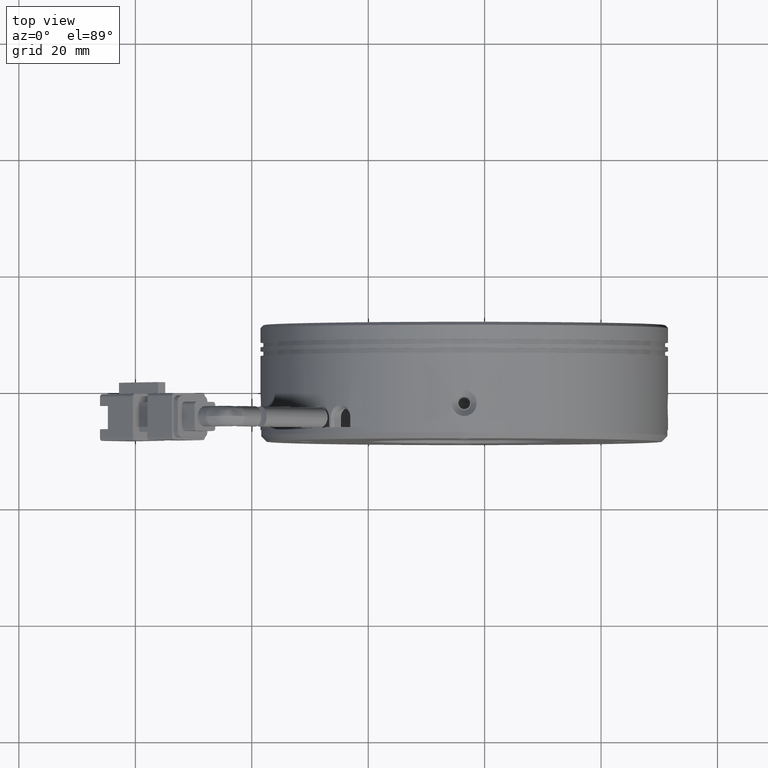
[diagram: clean part render]
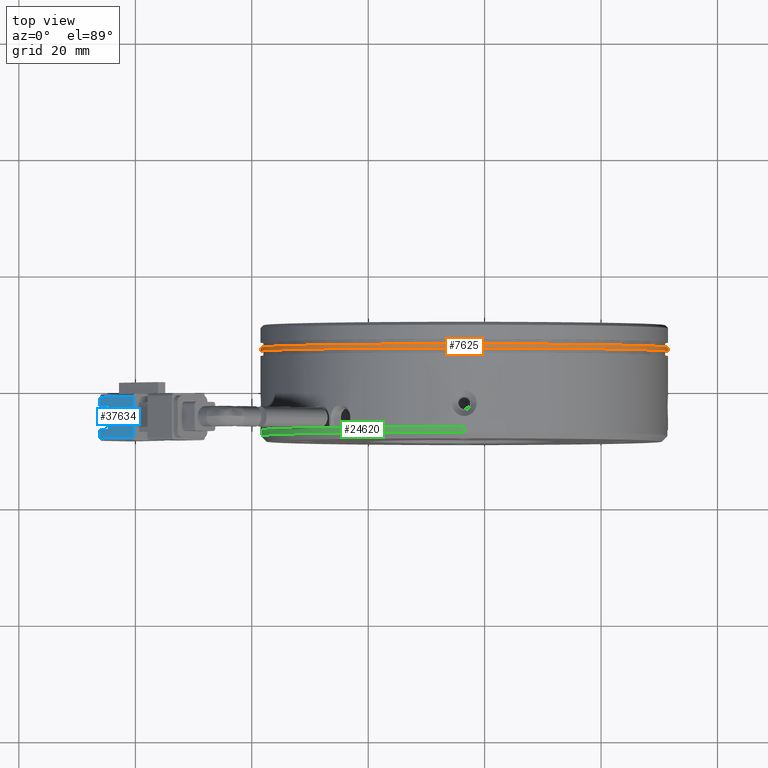
[diagram: same view with three faces highlighted in distinct colors, each labeled with its STEP entity id]
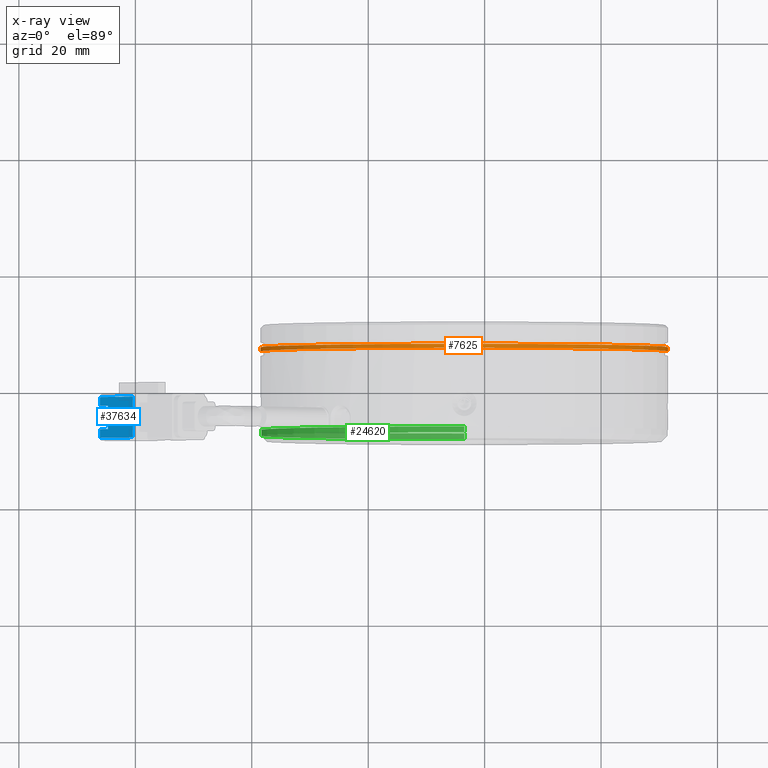
[diagram: x-ray of the same camera — body ghosted, the three highlighted faces saturated]
A machine part, top view with three faces highlighted in distinct colors.
The next image is the same camera in x-ray (body ghosted, the three faces saturated) — at least one of them is partly hidden behind the body in this view.
Their STEP definitions:

[orange] entity #7625 — the highlighted cylindrical surface (partial cylindrical patch) has radius 35 mm, axis along (0, 1, 0).
#1330 = CYLINDRICAL_SURFACE ( 'NONE', #34495, 35.00000000000000700 ) ;
#1667 = CIRCLE ( 'NONE', #23899, 35.00000000000000700 ) ;
#3836 = VECTOR ( 'NONE', #34998, 1000.000000000000000 ) ;
#5192 = CARTESIAN_POINT ( 'NONE',  ( -38.49922928709050800, 46.57623868994505800, -1.373900992973631200E-014 ) ) ;
#6320 = DIRECTION ( 'NONE',  ( -0.0000000000000000000, -1.000000000000000000, -0.0000000000000000000 ) ) ;
#6622 = CIRCLE ( 'NONE', #56351, 35.00000000000000700 ) ;
#7625 = ADVANCED_FACE ( 'NONE', ( #47284 ), #1330, .T. ) ;
#8764 = VERTEX_POINT ( 'NONE', #13535 ) ;
#11014 = EDGE_CURVE ( 'NONE', #83423, #79453, #6622, .T. ) ;
#13535 = CARTESIAN_POINT ( 'NONE',  ( 31.50077071290951400, 47.27623868994506000, 4.147485918937592700E-015 ) ) ;
#14640 = LINE ( 'NONE', #45651, #86926 ) ;
#17701 = VERTEX_POINT ( 'NONE', #58401 ) ;
#22928 = EDGE_CURVE ( 'NONE', #83423, #8764, #14640, .T. ) ;
#23899 = AXIS2_PLACEMENT_3D ( 'NONE', #48222, #6320, #55285 ) ;
#29982 = CARTESIAN_POINT ( 'NONE',  ( -3.499229287090496400, 46.57623868994505800, -6.938893903907228400E-015 ) ) ;
#31549 = CARTESIAN_POINT ( 'NONE',  ( -3.499229287090496400, 49.23205631493804200, -6.938893903907228400E-015 ) ) ;
#34495 = AXIS2_PLACEMENT_3D ( 'NONE', #31549, #80526, #66672 ) ;
#34735 = EDGE_CURVE ( 'NONE', #8764, #17701, #1667, .T. ) ;
#34998 = DIRECTION ( 'NONE',  ( 0.0000000000000000000, 1.000000000000000000, 0.0000000000000000000 ) ) ;
#37046 = DIRECTION ( 'NONE',  ( -1.000000000000000000, 0.0000000000000000000, -1.942890293094023500E-016 ) ) ;
#38526 = EDGE_CURVE ( 'NONE', #79453, #17701, #78258, .T. ) ;
#41910 = ORIENTED_EDGE ( 'NONE', *, *, #38526, .F. ) ;
#44604 = EDGE_LOOP ( 'NONE', ( #86071, #50985, #67297, #41910 ) ) ;
#45651 = CARTESIAN_POINT ( 'NONE',  ( 31.50077071290951400, 49.23205631493804200, 4.147485918937592700E-015 ) ) ;
#47284 = FACE_OUTER_BOUND ( 'NONE', #44604, .T. ) ;
#48222 = CARTESIAN_POINT ( 'NONE',  ( -3.499229287090496400, 47.27623868994506000, -6.938893903907228400E-015 ) ) ;
#50985 = ORIENTED_EDGE ( 'NONE', *, *, #22928, .T. ) ;
#55285 = DIRECTION ( 'NONE',  ( -1.000000000000000000, 0.0000000000000000000, -1.942890293094023500E-016 ) ) ;
#56351 = AXIS2_PLACEMENT_3D ( 'NONE', #29982, #78977, #37046 ) ;
#58401 = CARTESIAN_POINT ( 'NONE',  ( -38.49922928709050800, 47.27623868994506000, -1.373900992973631200E-014 ) ) ;
#59377 = DIRECTION ( 'NONE',  ( 0.0000000000000000000, 1.000000000000000000, 0.0000000000000000000 ) ) ;
#65684 = CARTESIAN_POINT ( 'NONE',  ( 31.50077071290951400, 46.57623868994505800, 4.147485918937592700E-015 ) ) ;
#66672 = DIRECTION ( 'NONE',  ( -1.000000000000000000, 0.0000000000000000000, -1.942890293094023500E-016 ) ) ;
#67297 = ORIENTED_EDGE ( 'NONE', *, *, #34735, .T. ) ;
#78258 = LINE ( 'NONE', #84268, #3836 ) ;
#78977 = DIRECTION ( 'NONE',  ( -0.0000000000000000000, -1.000000000000000000, -0.0000000000000000000 ) ) ;
#79453 = VERTEX_POINT ( 'NONE', #5192 ) ;
#80526 = DIRECTION ( 'NONE',  ( 0.0000000000000000000, 1.000000000000000000, 0.0000000000000000000 ) ) ;
#83423 = VERTEX_POINT ( 'NONE', #65684 ) ;
#84268 = CARTESIAN_POINT ( 'NONE',  ( -38.49922928709050800, 49.23205631493804200, -1.373900992973631200E-014 ) ) ;
#86071 = ORIENTED_EDGE ( 'NONE', *, *, #11014, .F. ) ;
#86926 = VECTOR ( 'NONE', #59377, 1000.000000000000000 ) ;

[blue] entity #37634 — the highlighted planar face has unit normal (0.7071, 0, -0.7071).
#3410 = DIRECTION ( 'NONE',  ( 0.7071067811865463500, 2.958228394578794300E-031, -0.7071067811865487900 ) ) ;
#4514 = VECTOR ( 'NONE', #31088, 1000.000000000000000 ) ;
#6208 = LINE ( 'NONE', #88607, #76253 ) ;
#6950 = LINE ( 'NONE', #13503, #44193 ) ;
#9542 = CARTESIAN_POINT ( 'NONE',  ( -66.07817942209986500, 38.27623868994507500, 25.10229073212249800 ) ) ;
#11606 = VECTOR ( 'NONE', #20176, 1000.000000000000000 ) ;
#11958 = CARTESIAN_POINT ( 'NONE',  ( -64.72150315198391000, 36.77623868994507500, 26.45896700223846000 ) ) ;
#12625 = EDGE_CURVE ( 'NONE', #88088, #26433, #77230, .T. ) ;
#13503 = CARTESIAN_POINT ( 'NONE',  ( -64.72150315198388200, 38.27623868994507500, 26.45896700223848100 ) ) ;
#15024 = VECTOR ( 'NONE', #75648, 1000.000000000000000 ) ;
#15908 = ORIENTED_EDGE ( 'NONE', *, *, #12625, .F. ) ;
#16003 = LINE ( 'NONE', #9542, #44449 ) ;
#16516 = AXIS2_PLACEMENT_3D ( 'NONE', #45297, #3410, #52362 ) ;
#17180 = PLANE ( 'NONE',  #16516 ) ;
#17249 = CARTESIAN_POINT ( 'NONE',  ( -66.07817942209986500, 31.27623868994507800, 25.10229073212249400 ) ) ;
#19858 = ORIENTED_EDGE ( 'NONE', *, *, #76141, .T. ) ;
#20176 = DIRECTION ( 'NONE',  ( 5.690897695192913200E-016, 1.000000000000000000, 5.690897695192897500E-016 ) ) ;
#21015 = CARTESIAN_POINT ( 'NONE',  ( -66.07817942209986500, 32.77623868994508200, 25.10229073212249400 ) ) ;
#26433 = VERTEX_POINT ( 'NONE', #80836 ) ;
#29022 = VERTEX_POINT ( 'NONE', #64054 ) ;
#30292 = EDGE_CURVE ( 'NONE', #29022, #62133, #6950, .T. ) ;
#30968 = CARTESIAN_POINT ( 'NONE',  ( -66.07817942209986500, 36.77623868994508200, 25.10229073212249800 ) ) ;
#31088 = DIRECTION ( 'NONE',  ( 0.7071067811865487900, -8.048144702619595500E-016, 0.7071067811865463500 ) ) ;
#31587 = DIRECTION ( 'NONE',  ( -0.7071067811865487900, 8.048144702619595500E-016, -0.7071067811865463500 ) ) ;
#32557 = LINE ( 'NONE', #21015, #69722 ) ;
#33658 = ORIENTED_EDGE ( 'NONE', *, *, #81367, .F. ) ;
#34821 = DIRECTION ( 'NONE',  ( 0.7071067811865487900, -8.048144702619595500E-016, 0.7071067811865463500 ) ) ;
#37634 = ADVANCED_FACE ( 'NONE', ( #41586 ), #17180, .F. ) ;
#38124 = CARTESIAN_POINT ( 'NONE',  ( -66.07817942209986500, 38.27623868994507500, 25.10229073212249800 ) ) ;
#39851 = LINE ( 'NONE', #30968, #74877 ) ;
#40489 = VERTEX_POINT ( 'NONE', #78166 ) ;
#41483 = CARTESIAN_POINT ( 'NONE',  ( -60.42132517260747400, 38.27623868994506800, 30.75914498161489500 ) ) ;
#41586 = FACE_OUTER_BOUND ( 'NONE', #65395, .T. ) ;
#42393 = ORIENTED_EDGE ( 'NONE', *, *, #87762, .F. ) ;
#44193 = VECTOR ( 'NONE', #55114, 1000.000000000000000 ) ;
#44449 = VECTOR ( 'NONE', #65781, 1000.000000000000000 ) ;
#45297 = CARTESIAN_POINT ( 'NONE',  ( -66.07817942209986500, 38.27623868994507500, 25.10229073212249800 ) ) ;
#47605 = EDGE_CURVE ( 'NONE', #26433, #54666, #60291, .T. ) ;
#50832 = ORIENTED_EDGE ( 'NONE', *, *, #30292, .F. ) ;
#52323 = CARTESIAN_POINT ( 'NONE',  ( -66.07817942209985100, 32.77623868994507500, 25.10229073212249400 ) ) ;
#52362 = DIRECTION ( 'NONE',  ( -0.7071067811865487900, 8.048144702619595500E-016, -0.7071067811865463500 ) ) ;
#53761 = DIRECTION ( 'NONE',  ( -1.145450188838179900E-015, -1.000000000000000000, -1.251682674090831700E-015 ) ) ;
#54666 = VERTEX_POINT ( 'NONE', #41483 ) ;
#54760 = ORIENTED_EDGE ( 'NONE', *, *, #75799, .F. ) ;
#55105 = CARTESIAN_POINT ( 'NONE',  ( -66.07817942209990700, 38.27623868994507500, 25.10229073212246200 ) ) ;
#55114 = DIRECTION ( 'NONE',  ( 5.690897695192913200E-016, 1.000000000000000000, 5.690897695192897500E-016 ) ) ;
#59332 = ORIENTED_EDGE ( 'NONE', *, *, #47605, .F. ) ;
#60291 = LINE ( 'NONE', #38124, #4514 ) ;
#62133 = VERTEX_POINT ( 'NONE', #11958 ) ;
#64054 = CARTESIAN_POINT ( 'NONE',  ( -64.72150315198392400, 32.77623868994507500, 26.45896700223844500 ) ) ;
#64730 = EDGE_CURVE ( 'NONE', #62133, #88088, #39851, .T. ) ;
#65395 = EDGE_LOOP ( 'NONE', ( #66772, #50832, #33658, #19858, #54760, #42393, #59332, #15908 ) ) ;
#65781 = DIRECTION ( 'NONE',  ( -1.145450188838179900E-015, -1.000000000000000000, -1.251682674090831700E-015 ) ) ;
#66772 = ORIENTED_EDGE ( 'NONE', *, *, #64730, .F. ) ;
#68575 = CARTESIAN_POINT ( 'NONE',  ( -66.07817942209986500, 31.27623868994507800, 25.10229073212250100 ) ) ;
#69722 = VECTOR ( 'NONE', #34821, 1000.000000000000000 ) ;
#70849 = LINE ( 'NONE', #68575, #15024 ) ;
#71680 = CARTESIAN_POINT ( 'NONE',  ( -66.07817942209989300, 36.77623868994508200, 25.10229073212247300 ) ) ;
#71805 = VERTEX_POINT ( 'NONE', #17249 ) ;
#72355 = VERTEX_POINT ( 'NONE', #52323 ) ;
#74877 = VECTOR ( 'NONE', #31587, 1000.000000000000000 ) ;
#75648 = DIRECTION ( 'NONE',  ( -0.7071067811865487900, 1.695028902782227100E-015, -0.7071067811865463500 ) ) ;
#75799 = EDGE_CURVE ( 'NONE', #40489, #71805, #70849, .T. ) ;
#76141 = EDGE_CURVE ( 'NONE', #72355, #71805, #16003, .T. ) ;
#76253 = VECTOR ( 'NONE', #53761, 1000.000000000000000 ) ;
#77230 = LINE ( 'NONE', #55105, #11606 ) ;
#78166 = CARTESIAN_POINT ( 'NONE',  ( -60.42132517260750300, 31.27623868994506400, 30.75914498161486300 ) ) ;
#80836 = CARTESIAN_POINT ( 'NONE',  ( -66.07817942209985100, 38.27623868994507500, 25.10229073212251200 ) ) ;
#81367 = EDGE_CURVE ( 'NONE', #72355, #29022, #32557, .T. ) ;
#87762 = EDGE_CURVE ( 'NONE', #54666, #40489, #6208, .T. ) ;
#88088 = VERTEX_POINT ( 'NONE', #71680 ) ;
#88607 = CARTESIAN_POINT ( 'NONE',  ( -60.42132517260748900, 38.27623868994508200, 30.75914498161489900 ) ) ;

[green] entity #24620 — the highlighted cylindrical surface (partial cylindrical patch) has radius 35 mm, axis along (-0, 1, -0).
#1145 = ORIENTED_EDGE ( 'NONE', *, *, #48967, .T. ) ;
#2727 = CYLINDRICAL_SURFACE ( 'NONE', #75222, 34.99999999999999300 ) ;
#3310 = CARTESIAN_POINT ( 'NONE',  ( -3.499229287090538600, 32.07623868994506500, 0.0000000000000000000 ) ) ;
#8395 = AXIS2_PLACEMENT_3D ( 'NONE', #34226, #83160, #41235 ) ;
#10171 = CARTESIAN_POINT ( 'NONE',  ( -3.499229287090538600, 49.67432128801908700, 34.99999999999999300 ) ) ;
#10321 = DIRECTION ( 'NONE',  ( 0.0000000000000000000, 0.0000000000000000000, 1.000000000000000000 ) ) ;
#11482 = FACE_OUTER_BOUND ( 'NONE', #36471, .T. ) ;
#14349 = VERTEX_POINT ( 'NONE', #81872 ) ;
#17237 = DIRECTION ( 'NONE',  ( -0.0000000000000000000, 1.000000000000000000, -0.0000000000000000000 ) ) ;
#17365 = CARTESIAN_POINT ( 'NONE',  ( -3.499229287090538600, 32.07623868994506500, 34.99999999999999300 ) ) ;
#23839 = ORIENTED_EDGE ( 'NONE', *, *, #26534, .F. ) ;
#24620 = ADVANCED_FACE ( 'NONE', ( #11482 ), #2727, .T. ) ;
#25617 = CIRCLE ( 'NONE', #88405, 34.99999999999999300 ) ;
#26534 = EDGE_CURVE ( 'NONE', #14349, #66890, #66576, .T. ) ;
#27848 = DIRECTION ( 'NONE',  ( 0.0000000000000000000, 0.0000000000000000000, 1.000000000000000000 ) ) ;
#30033 = VECTOR ( 'NONE', #17237, 1000.000000000000000 ) ;
#32276 = LINE ( 'NONE', #10171, #30033 ) ;
#34226 = CARTESIAN_POINT ( 'NONE',  ( -3.499229287090538600, 33.07623868994505000, 0.0000000000000000000 ) ) ;
#34644 = CARTESIAN_POINT ( 'NONE',  ( -3.499229287090538600, 49.67432128801908700, 0.0000000000000000000 ) ) ;
#36471 = EDGE_LOOP ( 'NONE', ( #23839, #45511, #55610, #1145 ) ) ;
#39776 = CARTESIAN_POINT ( 'NONE',  ( -3.499229287090534200, 49.67432128801908700, -34.99999999999999300 ) ) ;
#41235 = DIRECTION ( 'NONE',  ( 0.0000000000000000000, 0.0000000000000000000, 1.000000000000000000 ) ) ;
#45511 = ORIENTED_EDGE ( 'NONE', *, *, #51226, .F. ) ;
#48967 = EDGE_CURVE ( 'NONE', #83418, #66890, #78421, .T. ) ;
#51226 = EDGE_CURVE ( 'NONE', #66653, #14349, #25617, .T. ) ;
#52276 = DIRECTION ( 'NONE',  ( 0.0000000000000000000, -1.000000000000000000, 0.0000000000000000000 ) ) ;
#55610 = ORIENTED_EDGE ( 'NONE', *, *, #85565, .T. ) ;
#58662 = CARTESIAN_POINT ( 'NONE',  ( -3.499229287090538600, 33.07623868994505000, 34.99999999999999300 ) ) ;
#66576 = LINE ( 'NONE', #39776, #78666 ) ;
#66653 = VERTEX_POINT ( 'NONE', #17365 ) ;
#66890 = VERTEX_POINT ( 'NONE', #83657 ) ;
#75222 = AXIS2_PLACEMENT_3D ( 'NONE', #34644, #90622, #27848 ) ;
#78421 = CIRCLE ( 'NONE', #8395, 34.99999999999999300 ) ;
#78666 = VECTOR ( 'NONE', #81723, 1000.000000000000000 ) ;
#81723 = DIRECTION ( 'NONE',  ( -0.0000000000000000000, 1.000000000000000000, -0.0000000000000000000 ) ) ;
#81872 = CARTESIAN_POINT ( 'NONE',  ( -3.499229287090534200, 32.07623868994506500, -34.99999999999999300 ) ) ;
#83160 = DIRECTION ( 'NONE',  ( 0.0000000000000000000, -1.000000000000000000, 0.0000000000000000000 ) ) ;
#83418 = VERTEX_POINT ( 'NONE', #58662 ) ;
#83657 = CARTESIAN_POINT ( 'NONE',  ( -3.499229287090534200, 33.07623868994505000, -34.99999999999999300 ) ) ;
#85565 = EDGE_CURVE ( 'NONE', #66653, #83418, #32276, .T. ) ;
#88405 = AXIS2_PLACEMENT_3D ( 'NONE', #3310, #52276, #10321 ) ;
#90622 = DIRECTION ( 'NONE',  ( -0.0000000000000000000, 1.000000000000000000, -0.0000000000000000000 ) ) ;